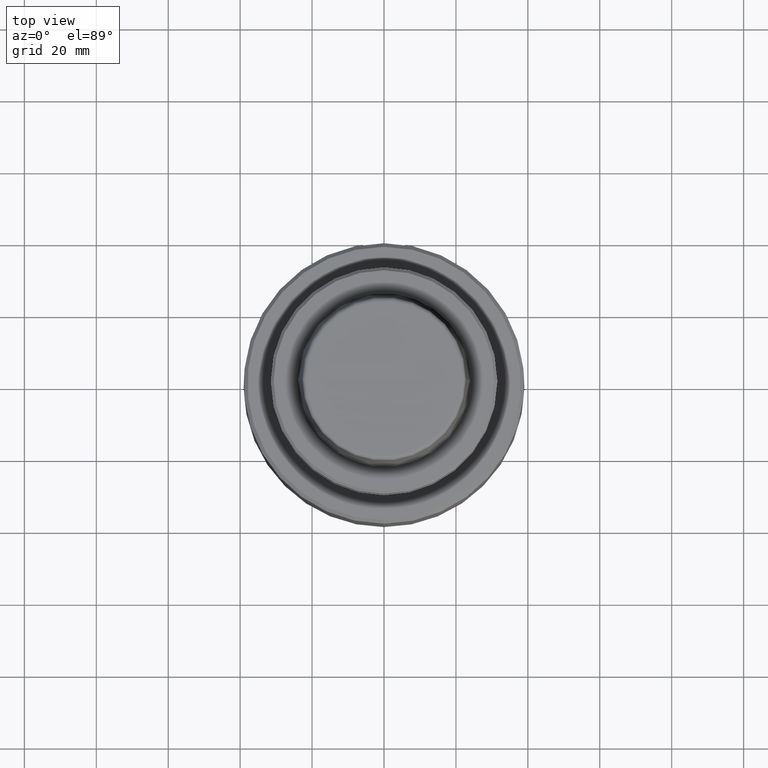
[diagram: clean part render]
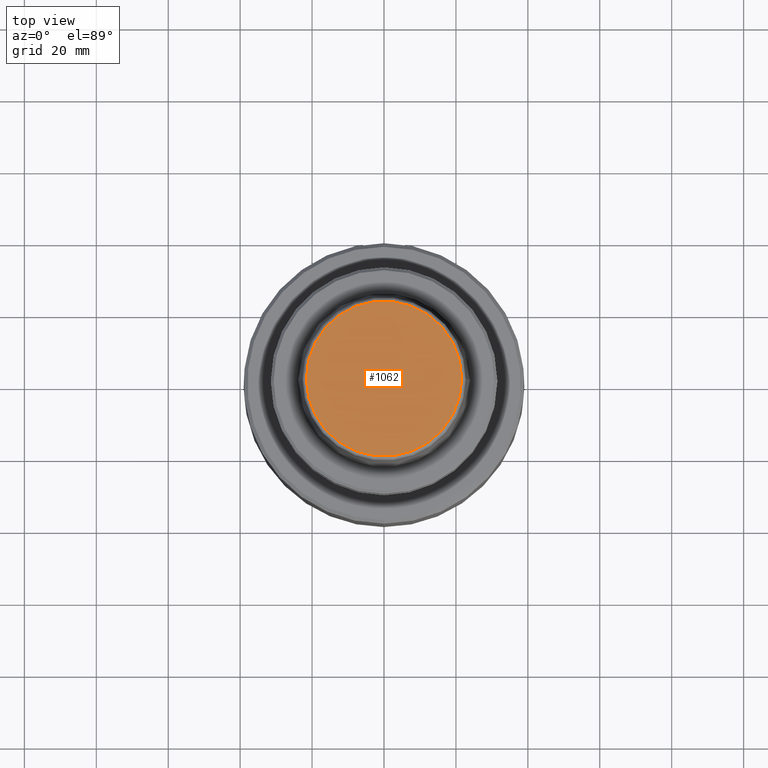
[diagram: same view with one face highlighted and labeled with its STEP entity id]
A machine part, top view. The second image highlights one B-rep face of the part: STEP entity #1062.
In plain terms, the highlighted planar face has unit normal (0, 0, -1).
Its self-contained STEP definition (entity closure, byte-faithful):
#84 = VERTEX_POINT ( 'NONE', #1819 ) ;
#140 = DIRECTION ( 'NONE',  ( 0.0000000000000000000, 0.0000000000000000000, -1.000000000000000000 ) ) ;
#242 = FACE_OUTER_BOUND ( 'NONE', #1324, .T. ) ;
#373 = EDGE_CURVE ( 'NONE', #971, #84, #3025, .T. ) ;
#447 = CARTESIAN_POINT ( 'NONE',  ( 0.0000000000000000000, 0.0000000000000000000, 31.87653199142026500 ) ) ;
#716 = DIRECTION ( 'NONE',  ( 1.000000000000000000, 0.0000000000000000000, 0.0000000000000000000 ) ) ;
#725 = EDGE_CURVE ( 'NONE', #84, #971, #917, .T. ) ;
#819 = CARTESIAN_POINT ( 'NONE',  ( 0.0000000000000000000, 0.0000000000000000000, 31.87653199142026500 ) ) ;
#911 = AXIS2_PLACEMENT_3D ( 'NONE', #2771, #140, #1996 ) ;
#917 = CIRCLE ( 'NONE', #3165, 21.58105086660056000 ) ;
#971 = VERTEX_POINT ( 'NONE', #1426 ) ;
#1062 = ADVANCED_FACE ( 'NONE', ( #242 ), #1737, .F. ) ;
#1103 = DIRECTION ( 'NONE',  ( 1.000000000000000000, 0.0000000000000000000, 0.0000000000000000000 ) ) ;
#1324 = EDGE_LOOP ( 'NONE', ( #2756, #2137 ) ) ;
#1408 = AXIS2_PLACEMENT_3D ( 'NONE', #819, #2681, #1103 ) ;
#1426 = CARTESIAN_POINT ( 'NONE',  ( 21.58105086660056000, 0.0000000000000000000, 31.87653199142026500 ) ) ;
#1737 = PLANE ( 'NONE',  #911 ) ;
#1819 = CARTESIAN_POINT ( 'NONE',  ( -21.58105086660056000, 2.716303250904411500E-015, 31.87653199142026500 ) ) ;
#1996 = DIRECTION ( 'NONE',  ( -1.000000000000000000, 0.0000000000000000000, -0.0000000000000000000 ) ) ;
#2137 = ORIENTED_EDGE ( 'NONE', *, *, #725, .T. ) ;
#2329 = DIRECTION ( 'NONE',  ( -0.0000000000000000000, -0.0000000000000000000, 1.000000000000000000 ) ) ;
#2681 = DIRECTION ( 'NONE',  ( -0.0000000000000000000, -0.0000000000000000000, 1.000000000000000000 ) ) ;
#2756 = ORIENTED_EDGE ( 'NONE', *, *, #373, .T. ) ;
#2771 = CARTESIAN_POINT ( 'NONE',  ( 0.0000000000000000000, 21.58105086660056000, 31.87653199142015500 ) ) ;
#3025 = CIRCLE ( 'NONE', #1408, 21.58105086660056000 ) ;
#3165 = AXIS2_PLACEMENT_3D ( 'NONE', #447, #2329, #716 ) ;